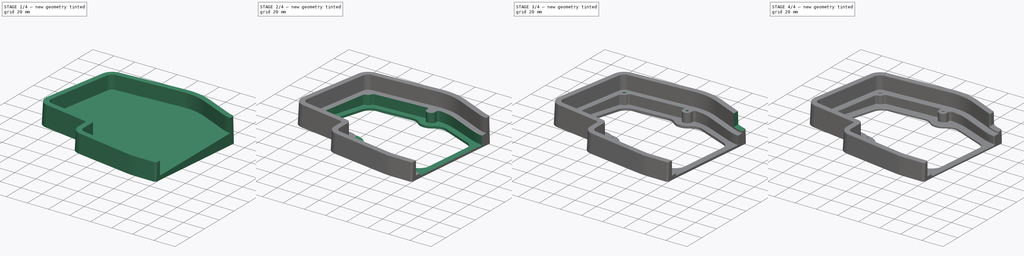
[diagram: build sequence overview — one tinted view per stage of 4, left to right]
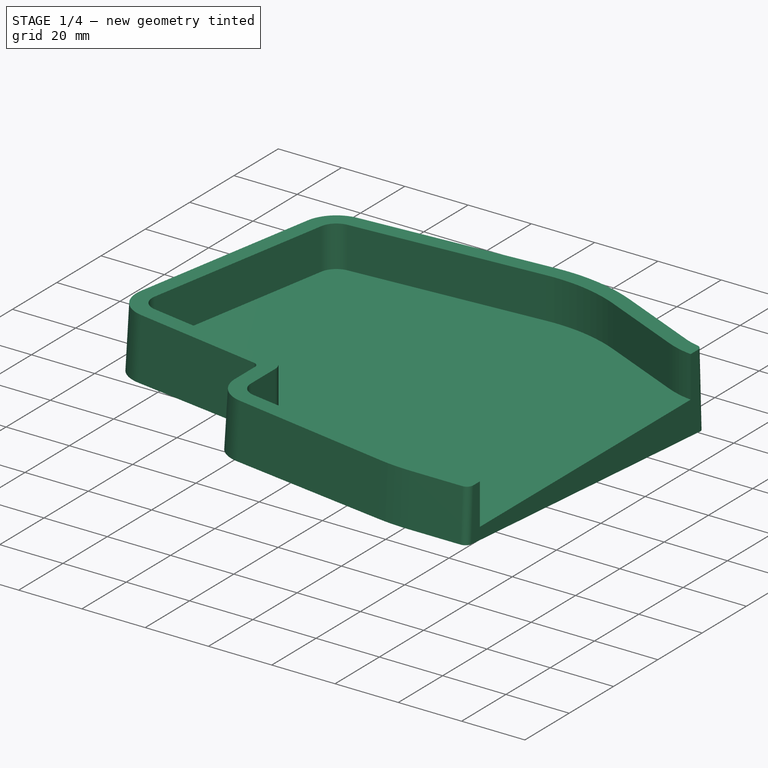
[diagram: stage 1 of 4 — iso view after this stage's code; geometry added in this stage tinted green]
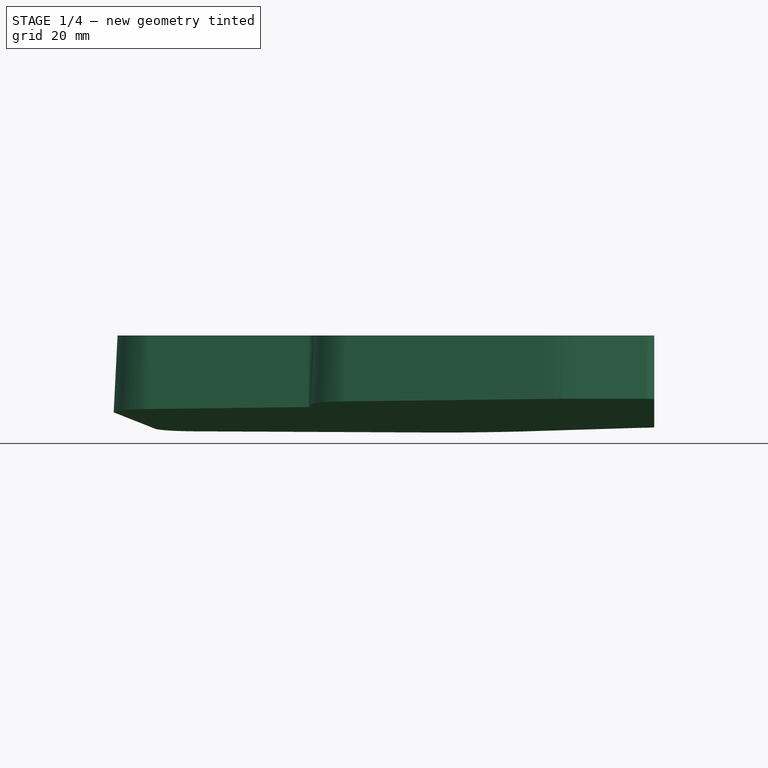
[diagram: stage 1 of 4 — front view after this stage's code; geometry added in this stage tinted green]
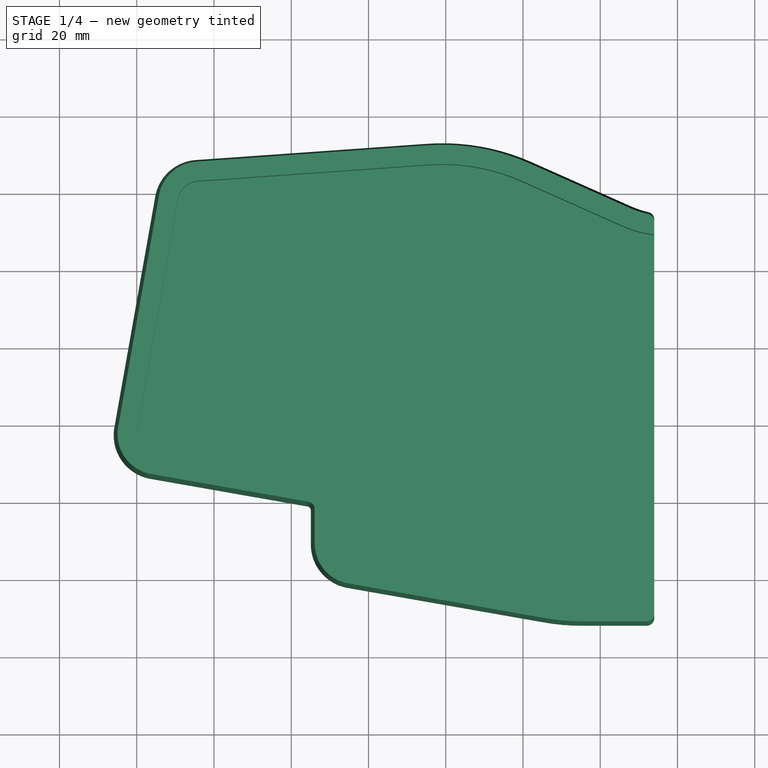
[diagram: stage 1 of 4 — top view after this stage's code; geometry added in this stage tinted green]
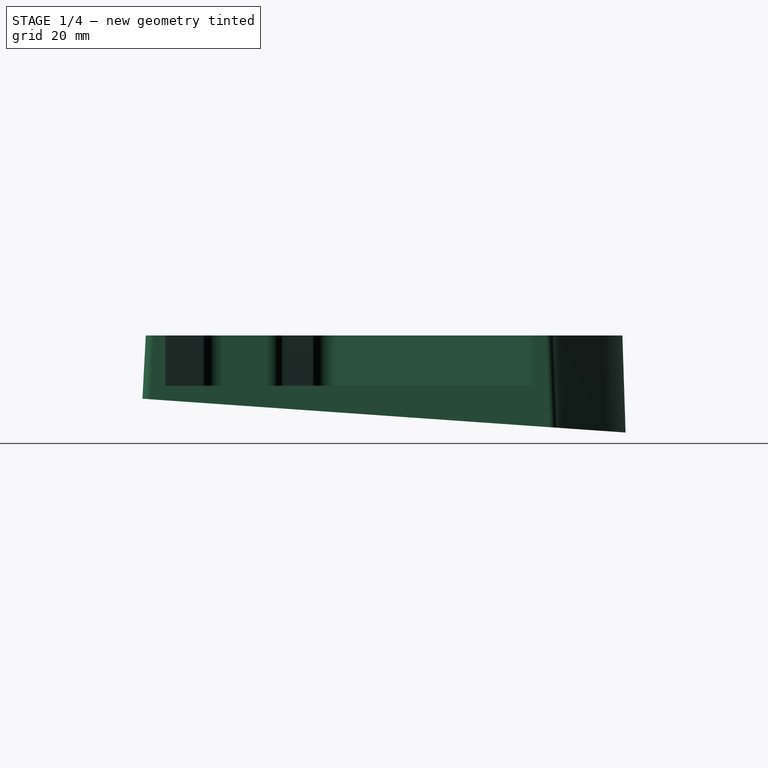
[diagram: stage 1 of 4 — right view after this stage's code; geometry added in this stage tinted green]
FCSTD DOCUMENT  (FreeCAD 0.21R)
Label: 001k-case
License: All rights reserved
LicenseURL: http://en.wikipedia.org/wiki/All_rights_reserved
objects: Sketcher::SketchObject×7, PartDesign::Pocket×4, PartDesign::Fillet×2, PartDesign::AdditiveLoft×1, PartDesign::Hole×1, PartDesign::Chamfer×1, PartDesign::Body×1
note: 26 computed .brp shape members not serialized (recipe doc carries the construction recipe); baked Part::Feature solids carry a one-line shape summary decoded from their .brp

FEATURE [Sketcher::SketchObject] Sketch
  AttachmentOffset = pos=(0,0,0) rot=(1,0,0;-0.069813rad)
  FullyConstrained = false
  MapMode = 5
  Placement = pos=(0,0,0) rot=(1,0,0;6.21337rad)
  Support = -> [XY_Plane]
  sketch-geometry (17):
    g0: ArcOfCircle CenterX=-134.479 CenterY=-2.5414 CenterZ=0 NormalX=0 NormalY=0 NormalZ=1 AngleXU=0 Radius=11.5001 StartAngle=2.96707 EndAngle=4.53784
    g1: LineSegment StartX=-136.476 StartY=-13.8667 StartZ=0 EndX=-95.7639 EndY=-21.0454 EndZ=0
    g2: LineSegment StartX=-94.9375 StartY=-22.0302 StartZ=0 EndX=-94.9375 EndY=-30.8853 EndZ=0
    g3: ArcOfCircle CenterX=-95.9375 CenterY=-22.0302 CenterZ=0 NormalX=0 NormalY=0 NormalZ=1 AngleXU=0 Radius=1 StartAngle=0 EndAngle=1.39626
    g4: LineSegment StartX=-85.4344 StartY=-42.2107 StartZ=0 EndX=-34.5569 EndY=-51.1817 EndZ=0
    g5: ArcOfCircle CenterX=-24.7457 CenterY=4.4609 CenterZ=0 NormalX=0 NormalY=0 NormalZ=1 AngleXU=0 Radius=56.501 StartAngle=4.53786 EndAngle=4.71239
    g6: LineSegment StartX=-135.211 StartY=59.5326 StartZ=0 EndX=-145.805 EndY=-0.54453 EndZ=0
    g7: ArcOfCircle CenterX=-123.886 CenterY=57.5357 CenterZ=0 NormalX=0 NormalY=0 NormalZ=1 AngleXU=0 Radius=11.5 StartAngle=1.64124 EndAngle=2.96706
    g8: LineSegment StartX=-124.696 StartY=69.0072 StartZ=0 EndX=-64.8163 EndY=73.2324 EndZ=0
    g9: ArcOfCircle CenterX=-60.8394 CenterY=16.8725 CenterZ=0 NormalX=0 NormalY=0 NormalZ=1 AngleXU=0 Radius=56.5 StartAngle=1.15129 EndAngle=1.64124
    g10: LineSegment StartX=-37.8262 StartY=68.4733 StartZ=0 EndX=-11.9275 EndY=56.9228 EndZ=0
    g11: ArcOfCircle CenterX=-2.3557 CenterY=78.3851 CenterZ=0 NormalX=0 NormalY=0 NormalZ=1 AngleXU=0 Radius=23.5 StartAngle=4.29288 EndAngle=4.4892
    g12: ArcOfCircle CenterX=-8 CenterY=53.5176 CenterZ=0 NormalX=0 NormalY=0 NormalZ=1 AngleXU=0 Radius=2.00001 StartAngle=0 EndAngle=1.3476
    g13: LineSegment StartX=-24.7458 StartY=-52.0401 StartZ=0 EndX=-8 EndY=-52.0401 EndZ=0
    g14: LineSegment StartX=-6 StartY=-50.0401 StartZ=0 EndX=-5.99999 EndY=53.5176 EndZ=0
    g15: ArcOfCircle CenterX=-8 CenterY=-50.0401 CenterZ=0 NormalX=0 NormalY=0 NormalZ=1 AngleXU=0 Radius=2 StartAngle=4.71239 EndAngle=6.28319
    g16: ArcOfCircle CenterX=-83.4376 CenterY=-30.8854 CenterZ=0 NormalX=0 NormalY=0 NormalZ=1 AngleXU=0 Radius=11.4999 StartAngle=3.14158 EndAngle=4.53787
  constraints (17):
    c: Coincident(g0,g6)
    c: Coincident(g0,g1)
    c: Coincident(g6,g7)
    c: Coincident(g7,g8)
    c: Coincident(g1,g3)
    c: Coincident(g2,g16)
    c: Coincident(g2,g3)
    c: Coincident(g4,g16)
    c: Coincident(g8,g9)
    c: Coincident(g9,g10)
    c: Coincident(g4,g5)
    c: Coincident(g5,g13)
    c: Coincident(g10,g11)
    c: Coincident(g13,g15)
    c: Coincident(g11,g12)
    c: Coincident(g14,g15)
    c: Coincident(g12,g14)
FEATURE [Sketcher::SketchObject] Sketch001
  AttachmentOffset = pos=(0,0,20) rot=(0,0,1;0rad)
  FullyConstrained = false
  MapMode = 5
  Placement = pos=(0,0,20) rot=(0,0,1;0rad)
  Support = -> [XY_Plane]
  sketch-geometry (17):
    g0: ArcOfCircle CenterX=-123.886 CenterY=57.5357 CenterZ=0 NormalX=0 NormalY=0 NormalZ=1 AngleXU=0 Radius=10.5 StartAngle=1.64124 EndAngle=2.96707
    g1: LineSegment StartX=-124.625 StartY=68.0096 StartZ=0 EndX=-64.7459 EndY=72.2349 EndZ=0
    g2: ArcOfCircle CenterX=-60.8394 CenterY=16.8725 CenterZ=0 NormalX=0 NormalY=0 NormalZ=1 AngleXU=0 Radius=55.5 StartAngle=1.15129 EndAngle=1.64124
    g3: LineSegment StartX=-38.2335 StartY=67.56 StartZ=0 EndX=-12.3349 EndY=56.0096 EndZ=0
    g4: LineSegment StartX=-134.227 StartY=59.3589 StartZ=0 EndX=-144.82 EndY=-0.71817 EndZ=0
    g5: ArcOfCircle CenterX=-134.479 CenterY=-2.5414 CenterZ=0 NormalX=0 NormalY=0 NormalZ=1 AngleXU=0 Radius=10.5001 StartAngle=2.96707 EndAngle=4.53784
    g6: LineSegment StartX=-85.2608 StartY=-41.2258 StartZ=0 EndX=-34.3832 EndY=-50.1969 EndZ=0
    g7: ArcOfCircle CenterX=-24.7457 CenterY=4.4609 CenterZ=0 NormalX=0 NormalY=0 NormalZ=1 AngleXU=0 Radius=55.501 StartAngle=4.53786 EndAngle=4.71239
    g8: LineSegment StartX=-136.303 StartY=-12.8819 StartZ=0 EndX=-95.5902 EndY=-20.0606 EndZ=0
    g9: LineSegment StartX=-93.9375 StartY=-22.0302 StartZ=0 EndX=-93.9375 EndY=-30.8854 EndZ=0
    g10: ArcOfCircle CenterX=-95.9375 CenterY=-22.0302 CenterZ=0 NormalX=0 NormalY=0 NormalZ=1 AngleXU=0 Radius=2 StartAngle=0 EndAngle=1.39626
    g11: ArcOfCircle CenterX=-2.3557 CenterY=78.3851 CenterZ=0 NormalX=0 NormalY=0 NormalZ=1 AngleXU=0 Radius=24.5 StartAngle=4.29288 EndAngle=4.49775
    g12: ArcOfCircle CenterX=-8 CenterY=52.4932 CenterZ=0 NormalX=0 NormalY=0 NormalZ=1 AngleXU=0 Radius=2.00002 StartAngle=0 EndAngle=1.35616
    g13: LineSegment StartX=-24.7458 StartY=-51.0401 StartZ=0 EndX=-8 EndY=-51.0401 EndZ=0
    g14: LineSegment StartX=-6 StartY=-49.0401 StartZ=0 EndX=-5.99998 EndY=52.4932 EndZ=0
    g15: ArcOfCircle CenterX=-8 CenterY=-49.0401 CenterZ=0 NormalX=0 NormalY=0 NormalZ=1 AngleXU=0 Radius=2 StartAngle=4.71239 EndAngle=6.28319
    g16: ArcOfCircle CenterX=-83.4376 CenterY=-30.8854 CenterZ=0 NormalX=0 NormalY=0 NormalZ=1 AngleXU=0 Radius=10.4999 StartAngle=3.14159 EndAngle=4.53786
  constraints (17):
    c: Coincident(g4,g5)
    c: Coincident(g5,g8)
    c: Coincident(g0,g4)
    c: Coincident(g0,g1)
    c: Coincident(g8,g10)
    c: Coincident(g9,g16)
    c: Coincident(g9,g10)
    c: Coincident(g6,g16)
    c: Coincident(g1,g2)
    c: Coincident(g2,g3)
    c: Coincident(g6,g7)
    c: Coincident(g7,g13)
    c: Coincident(g3,g11)
    c: Coincident(g13,g15)
    c: Coincident(g11,g12)
    c: Coincident(g14,g15)
    c: Coincident(g12,g14)
FEATURE [PartDesign::AdditiveLoft] AdditiveLoft
  Closed = false
  Profile = -> Sketch
  Ruled = true
  Sections = -> [Sketch001]
FEATURE [Sketcher::SketchObject] Sketch002
  FullyConstrained = false
  MapMode = 5
  Placement = pos=(0,0,20) rot=(0,0,1;0rad)
  Support = -> [AdditiveLoft]
  sketch-geometry (15):
    g0: ArcOfCircle CenterX=-60.8394 CenterY=16.8725 CenterZ=0 NormalX=0 NormalY=0 NormalZ=1 AngleXU=0 Radius=50.5 StartAngle=1.15129 EndAngle=1.64124
    g1: LineSegment StartX=-40.27 StartY=62.9936 StartZ=0 EndX=-14.3714 EndY=51.4431 EndZ=0
    g2: LineSegment StartX=-124.273 StartY=63.022 StartZ=0 EndX=-64.394 EndY=67.2473 EndZ=0
    g3: ArcOfCircle CenterX=-123.886 CenterY=57.5357 CenterZ=0 NormalX=0 NormalY=0 NormalZ=1 AngleXU=0 Radius=5.49996 StartAngle=1.64124 EndAngle=2.96707
    g4: LineSegment StartX=-129.303 StartY=58.4907 StartZ=0 EndX=-139.896 EndY=-1.58636 EndZ=0
    g5: ArcOfCircle CenterX=-134.479 CenterY=-2.5414 CenterZ=0 NormalX=0 NormalY=0 NormalZ=1 AngleXU=0 Radius=5.50007 StartAngle=2.96707 EndAngle=4.53784
    g6: LineSegment StartX=-135.434 StartY=-7.9579 StartZ=0 EndX=-92.6561 EndY=-15.5009 EndZ=0
    g7: ArcOfCircle CenterX=-93.4375 CenterY=-19.9325 CenterZ=0 NormalX=0 NormalY=0 NormalZ=1 AngleXU=0 Radius=4.5 StartAngle=2.80003e-06 EndAngle=1.39626
    g8: LineSegment StartX=-88.9375 StartY=-19.9325 StartZ=0 EndX=-88.9375 EndY=-30.8854 EndZ=0
    g9: LineSegment StartX=-84.3926 StartY=-36.3018 StartZ=0 EndX=-33.515 EndY=-45.2729 EndZ=0
    g10: ArcOfCircle CenterX=-24.7457 CenterY=4.4609 CenterZ=0 NormalX=0 NormalY=0 NormalZ=1 AngleXU=0 Radius=50.501 StartAngle=4.53786 EndAngle=4.71239
    g11: LineSegment StartX=-24.7458 StartY=-46.0401 StartZ=0 EndX=-3 EndY=-46.0401 EndZ=0
    g12: ArcOfCircle CenterX=-2.3557 CenterY=78.3851 CenterZ=0 NormalX=0 NormalY=0 NormalZ=1 AngleXU=0 Radius=29.5 StartAngle=4.29288 EndAngle=4.69055
    g13: LineSegment StartX=-3 StartY=-46.0401 StartZ=0 EndX=-3 EndY=48.8921 EndZ=0
    g14: ArcOfCircle CenterX=-83.4376 CenterY=-30.8854 CenterZ=0 NormalX=0 NormalY=0 NormalZ=1 AngleXU=0 Radius=5.49992 StartAngle=3.14158 EndAngle=4.53787
  constraints (15):
    c: Coincident(g4,g5)
    c: Coincident(g5,g6)
    c: Coincident(g3,g4)
    c: Coincident(g2,g3)
    c: Coincident(g6,g7)
    c: Coincident(g8,g14)
    c: Coincident(g7,g8)
    c: Coincident(g9,g14)
    c: Coincident(g0,g2)
    c: Coincident(g0,g1)
    c: Coincident(g9,g10)
    c: Coincident(g10,g11)
    c: Coincident(g1,g12)
    c: Coincident(g11,g13)
    c: Coincident(g12,g13)
FEATURE [PartDesign::Pocket] Pocket
  BaseFeature = -> AdditiveLoft
  Direction = (0,0,-1)
  Length = 13
  Length2 = 5
  Profile = -> Sketch002
  ReferenceAxis = -> Sketch002 [N_Axis]
  Type = 0
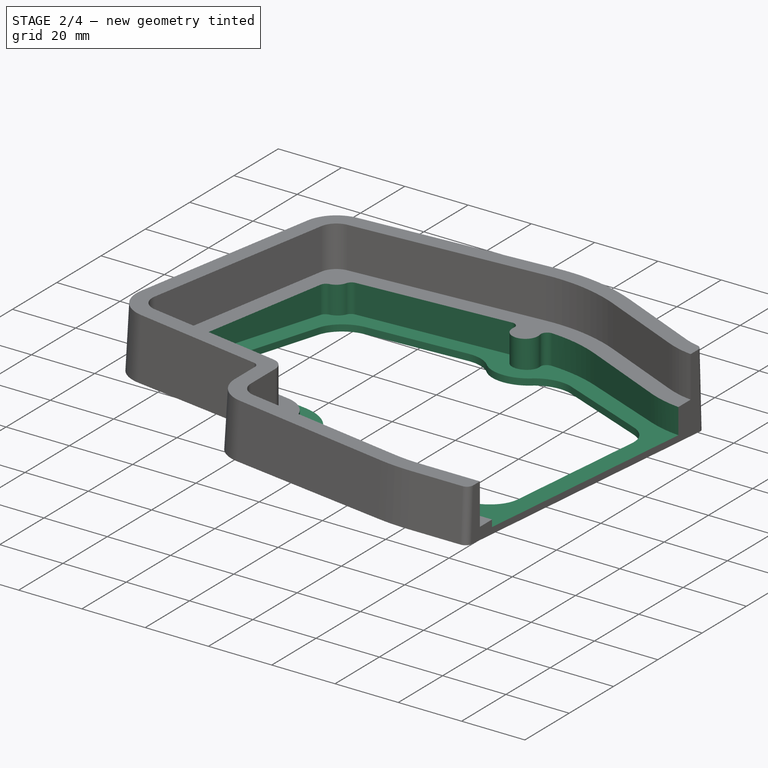
[diagram: stage 2 of 4 — iso view after this stage's code; geometry added in this stage tinted green]
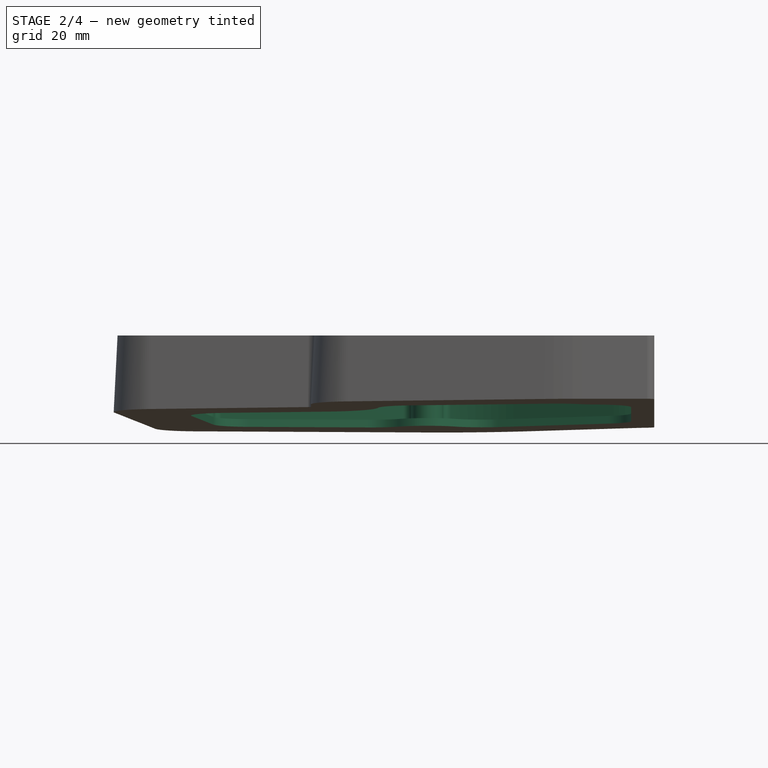
[diagram: stage 2 of 4 — front view after this stage's code; geometry added in this stage tinted green]
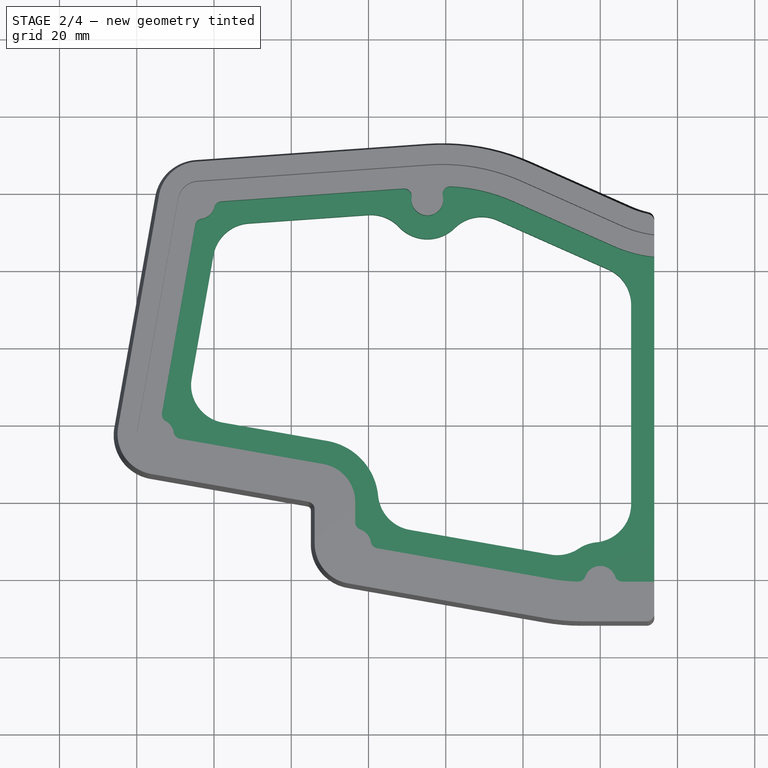
[diagram: stage 2 of 4 — top view after this stage's code; geometry added in this stage tinted green]
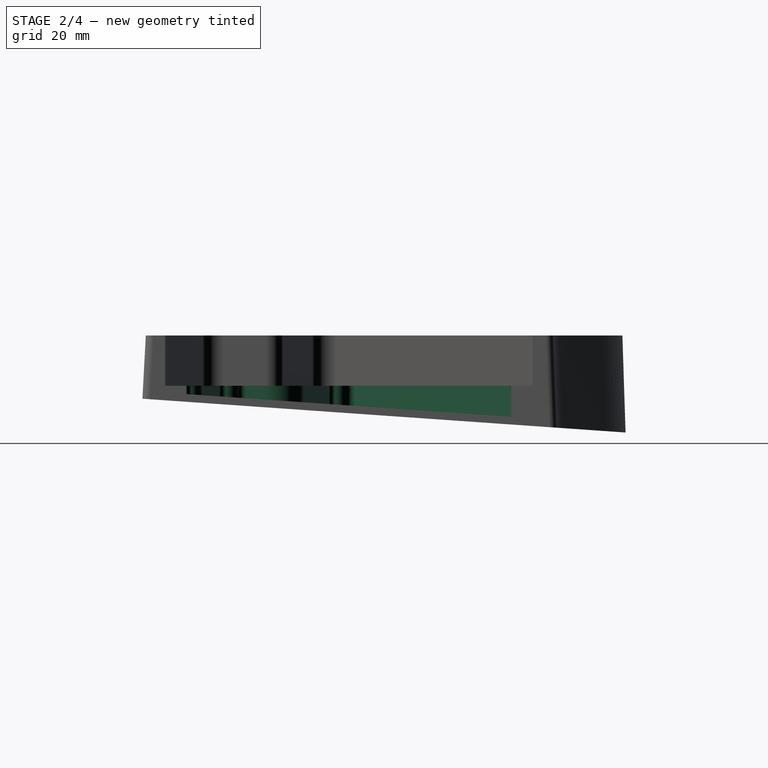
[diagram: stage 2 of 4 — right view after this stage's code; geometry added in this stage tinted green]
FEATURE [Sketcher::SketchObject] Sketch003
  FullyConstrained = false
  MapMode = 5
  Placement = pos=(0,0,7) rot=(0,0,1;0rad)
  Support = -> [Pocket]
  sketch-geometry (27):
    g0: ArcOfCircle CenterX=-93.4375 CenterY=-19.9325 CenterZ=0 NormalX=0 NormalY=0 NormalZ=1 AngleXU=0 Radius=10 StartAngle=2.80003e-06 EndAngle=1.39626
    g1: LineSegment StartX=-42.5103 StartY=57.9705 StartZ=0 EndX=-16.6117 EndY=46.42 EndZ=0
    g2: ArcOfCircle CenterX=-14.2494 CenterY=-38.5401 CenterZ=0 NormalX=0 NormalY=0 NormalZ=1 AngleXU=0 Radius=2 StartAngle=3.4817 EndAngle=4.71239
    g3: ArcOfCircle CenterX=-20 CenterY=-40.575 CenterZ=0 NormalX=0 NormalY=0 NormalZ=1 AngleXU=0 Radius=4.1 StartAngle=0.340108 EndAngle=2.79946
    g4: ArcOfCircle CenterX=-24.7458 CenterY=4.4599 CenterZ=0 NormalX=0 NormalY=0 NormalZ=1 AngleXU=0 Radius=45 StartAngle=4.53786 EndAngle=4.68912
    g5: ArcOfCircle CenterX=-25.7464 CenterY=-38.5285 CenterZ=0 NormalX=0 NormalY=0 NormalZ=1 AngleXU=0 Radius=2 StartAngle=4.68912 EndAngle=5.94105
    g6: LineSegment StartX=-77.7681 StartY=-31.885 StartZ=0 EndX=-32.5599 EndY=-39.8565 EndZ=0
    g7: ArcOfCircle CenterX=-77.4208 CenterY=-29.9154 CenterZ=0 NormalX=0 NormalY=0 NormalZ=1 AngleXU=0 Radius=2 StartAngle=3.30708 EndAngle=4.53786
    g8: ArcOfCircle CenterX=-83.4375 CenterY=-30.9203 CenterZ=0 NormalX=0 NormalY=0 NormalZ=1 AngleXU=0 Radius=4.1 StartAngle=0.165483 EndAngle=1.23675
    g9: LineSegment StartX=-83.4375 StartY=-19.9325 StartZ=0 EndX=-83.4375 EndY=-25.1574 EndZ=0
    g10: ArcOfCircle CenterX=-81.4375 CenterY=-25.1574 CenterZ=0 NormalX=0 NormalY=0 NormalZ=1 AngleXU=0 Radius=2 StartAngle=3.14159 EndAngle=4.37834
    g11: LineSegment StartX=-128.81 StartY=-3.54109 StartZ=0 EndX=-91.701 EndY=-10.0844 EndZ=0
    g12: ArcOfCircle CenterX=-128.463 CenterY=-1.57148 CenterZ=0 NormalX=0 NormalY=0 NormalZ=1 AngleXU=0 Radius=2 StartAngle=3.30708 EndAngle=4.53786
    g13: ArcOfCircle CenterX=-134.479 CenterY=-2.57632 CenterZ=0 NormalX=0 NormalY=0 NormalZ=1 AngleXU=0 Radius=4.1 StartAngle=0.165483 EndAngle=1.06327
    g14: ArcOfCircle CenterX=-131.515 CenterY=2.75476 CenterZ=0 NormalX=0 NormalY=0 NormalZ=1 AngleXU=0 Radius=2 StartAngle=2.96706 EndAngle=4.20486
    g15: LineSegment StartX=-124.893 StartY=51.8245 StartZ=0 EndX=-133.484 EndY=3.10206 EndZ=0
    g16: ArcOfCircle CenterX=-122.924 CenterY=51.4772 CenterZ=0 NormalX=0 NormalY=0 NormalZ=1 AngleXU=0 Radius=2 StartAngle=1.72926 EndAngle=2.96706
    g17: ArcOfCircle CenterX=-123.886 CenterY=57.5008 CenterZ=0 NormalX=0 NormalY=0 NormalZ=1 AngleXU=0 Radius=4.1 StartAngle=4.87085 EndAngle=6.02562
    g18: ArcOfCircle CenterX=-117.987 CenterY=55.9469 CenterZ=0 NormalX=0 NormalY=0 NormalZ=1 AngleXU=0 Radius=2 StartAngle=1.64124 EndAngle=2.88403
    g19: LineSegment StartX=-118.128 StartY=57.942 StartZ=0 EndX=-70.9504 EndY=61.2709 EndZ=0
    g20: ArcOfCircle CenterX=-70.8097 CenterY=59.2759 CenterZ=0 NormalX=0 NormalY=0 NormalZ=1 AngleXU=0 Radius=2 StartAngle=6.14241 EndAngle=7.92443
    g21: ArcOfCircle CenterX=-64.77 CenterY=58.42 CenterZ=0 NormalX=0 NormalY=0 NormalZ=1 AngleXU=0 Radius=4.1 StartAngle=3.00082 EndAngle=6.51572
    g22: ArcOfCircle CenterX=-60.8394 CenterY=16.8725 CenterZ=0 NormalX=0 NormalY=0 NormalZ=1 AngleXU=0 Radius=45 StartAngle=1.15129 EndAngle=1.52415
    g23: ArcOfCircle CenterX=-58.8342 CenterY=59.8257 CenterZ=0 NormalX=0 NormalY=0 NormalZ=1 AngleXU=0 Radius=2 StartAngle=1.52415 EndAngle=3.37413
    g24: LineSegment StartX=-14.2494 StartY=-40.5401 StartZ=0 EndX=-3 EndY=-40.5401 EndZ=0
    g25: ArcOfCircle CenterX=-2.3557 CenterY=78.3851 CenterZ=0 NormalX=0 NormalY=0 NormalZ=1 AngleXU=0 Radius=35 StartAngle=4.29288 EndAngle=4.69398
    g26: LineSegment StartX=-3 StartY=-40.5401 StartZ=0 EndX=-3 EndY=43.391 EndZ=0
  constraints (27):
    c: Coincident(g14,g15)
    c: Coincident(g13,g14)
    c: Coincident(g12,g13)
    c: Coincident(g11,g12)
    c: Coincident(g15,g16)
    c: Coincident(g16,g17)
    c: Coincident(g17,g18)
    c: Coincident(g18,g19)
    c: Coincident(g0,g11)
    c: Coincident(g9,g10)
    c: Coincident(g0,g9)
    c: Coincident(g8,g10)
    c: Coincident(g7,g8)
    c: Coincident(g6,g7)
    c: Coincident(g19,g20)
    c: Coincident(g20,g21)
    c: Coincident(g21,g23)
    c: Coincident(g22,g23)
    c: Coincident(g1,g22)
    c: Coincident(g4,g6)
    c: Coincident(g4,g5)
    c: Coincident(g3,g5)
    c: Coincident(g1,g25)
    c: Coincident(g2,g3)
    c: Coincident(g2,g24)
    c: Coincident(g24,g26)
    c: Coincident(g25,g26)
FEATURE [PartDesign::Pocket] Pocket001
  BaseFeature = -> Pocket
  Direction = (0,0,-1)
  Length = 0
  Length2 = 5
  Offset = -2
  Profile = -> Sketch003
  ReferenceAxis = -> Sketch003 [N_Axis]
  Type = 3
  UpToFace = -> Pocket [Face1]
FEATURE [Sketcher::SketchObject] Sketch004
  FullyConstrained = false
  MapMode = 5
  Placement = pos=(0,0.139173,1.99027) rot=(-1,0,0;0.069813rad)
  Support = -> [Pocket001]
  sketch-geometry (17):
    g0: ArcOfCircle CenterX=-110.299 CenterY=42.4547 CenterZ=0 NormalX=0 NormalY=0 NormalZ=1 AngleXU=0 Radius=10 StartAngle=1.64124 EndAngle=2.96706
    g1: LineSegment StartX=-120.147 StartY=44.1911 StartZ=0 EndX=-125.792 EndY=12.1736 EndZ=0
    g2: LineSegment StartX=-117.681 StartY=0.589046 StartZ=0 EndX=-90.6591 EndY=-4.17556 EndZ=0
    g3: ArcOfCircle CenterX=-115.944 CenterY=10.4371 CenterZ=0 NormalX=0 NormalY=0 NormalZ=1 AngleXU=0 Radius=10 StartAngle=2.96706 EndAngle=4.53786
    g4: ArcOfCircle CenterX=-93.4375 CenterY=-19.9325 CenterZ=0 NormalX=0 NormalY=0 NormalZ=1 AngleXU=0 Radius=16 StartAngle=0.0960655 EndAngle=1.39626
    g5: ArcOfCircle CenterX=-67.5574 CenterY=-17.4386 CenterZ=0 NormalX=0 NormalY=0 NormalZ=1 AngleXU=0 Radius=10 StartAngle=3.23766 EndAngle=4.53786
    g6: LineSegment StartX=-69.2938 StartY=-27.2867 StartZ=0 EndX=-32.8949 EndY=-33.7048 EndZ=0
    g7: ArcOfCircle CenterX=-31.1584 CenterY=-23.8568 CenterZ=0 NormalX=0 NormalY=0 NormalZ=1 AngleXU=0 Radius=10 StartAngle=4.53786 EndAngle=5.30093
    g8: ArcOfCircle CenterX=-20 CenterY=-40.575 CenterZ=0 NormalX=0 NormalY=0 NormalZ=1 AngleXU=0 Radius=10.1 StartAngle=1.67046 EndAngle=2.15933
    g9: ArcOfCircle CenterX=-22 CenterY=-20.5748 CenterZ=0 NormalX=0 NormalY=0 NormalZ=1 AngleXU=0 Radius=10 StartAngle=4.81206 EndAngle=6.28319
    g10: LineSegment StartX=-12 StartY=-20.5748 StartZ=0 EndX=-12 EndY=31.304 EndZ=0
    g11: ArcOfCircle CenterX=-22 CenterY=31.304 CenterZ=0 NormalX=0 NormalY=0 NormalZ=1 AngleXU=0 Radius=10 StartAngle=0 EndAngle=1.15128
    g12: LineSegment StartX=-46.6002 StartY=53.2248 StartZ=0 EndX=-17.9269 EndY=40.4369 EndZ=0
    g13: ArcOfCircle CenterX=-50.6733 CenterY=44.092 CenterZ=0 NormalX=0 NormalY=0 NormalZ=1 AngleXU=0 Radius=10 StartAngle=1.15128 EndAngle=2.34806
    g14: ArcOfCircle CenterX=-64.77 CenterY=58.42 CenterZ=0 NormalX=0 NormalY=0 NormalZ=1 AngleXU=0 Radius=10.1 StartAngle=3.89732 EndAngle=5.48965
    g15: LineSegment StartX=-111.002 StartY=52.4299 StartZ=0 EndX=-80.1021 EndY=54.6103 EndZ=0
    g16: ArcOfCircle CenterX=-79.3982 CenterY=44.6351 CenterZ=0 NormalX=0 NormalY=0 NormalZ=1 AngleXU=0 Radius=10 StartAngle=0.755727 EndAngle=1.64124
  constraints (17):
    c: Coincident(g1,g3)
    c: Coincident(g0,g1)
    c: Coincident(g2,g3)
    c: Coincident(g0,g15)
    c: Coincident(g2,g4)
    c: Coincident(g15,g16)
    c: Coincident(g4,g5)
    c: Coincident(g14,g16)
    c: Coincident(g5,g6)
    c: Coincident(g13,g14)
    c: Coincident(g12,g13)
    c: Coincident(g6,g7)
    c: Coincident(g7,g8)
    c: Coincident(g8,g9)
    c: Coincident(g11,g12)
    c: Coincident(g9,g10)
    c: Coincident(g10,g11)
FEATURE [PartDesign::Pocket] Pocket002
  BaseFeature = -> Pocket001
  Direction = (0,-0.0697565,-0.997564)
  Length = 5
  Length2 = 5
  Profile = -> Sketch004
  ReferenceAxis = -> Sketch004 [N_Axis]
  Type = 0
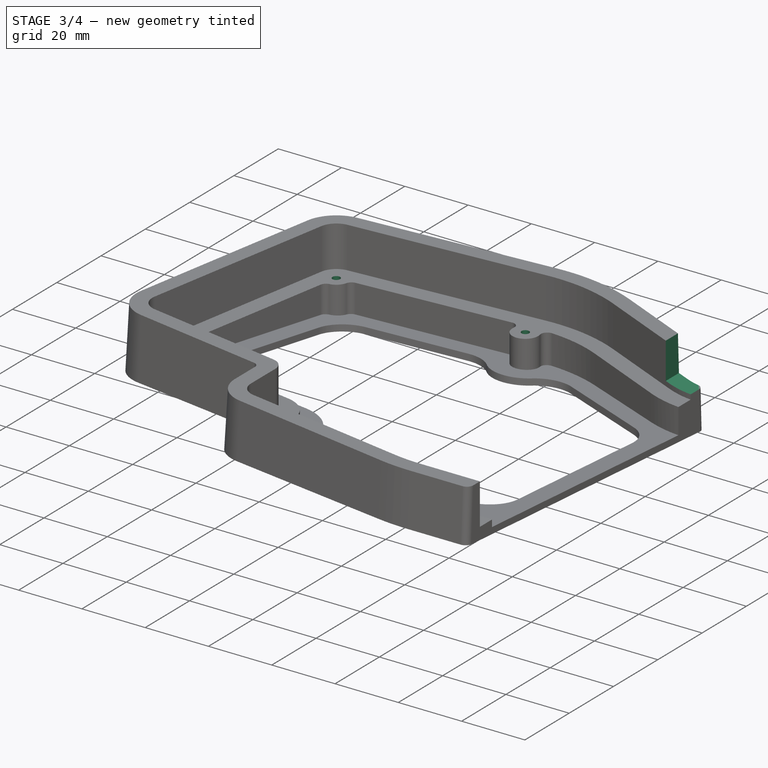
[diagram: stage 3 of 4 — iso view after this stage's code; geometry added in this stage tinted green]
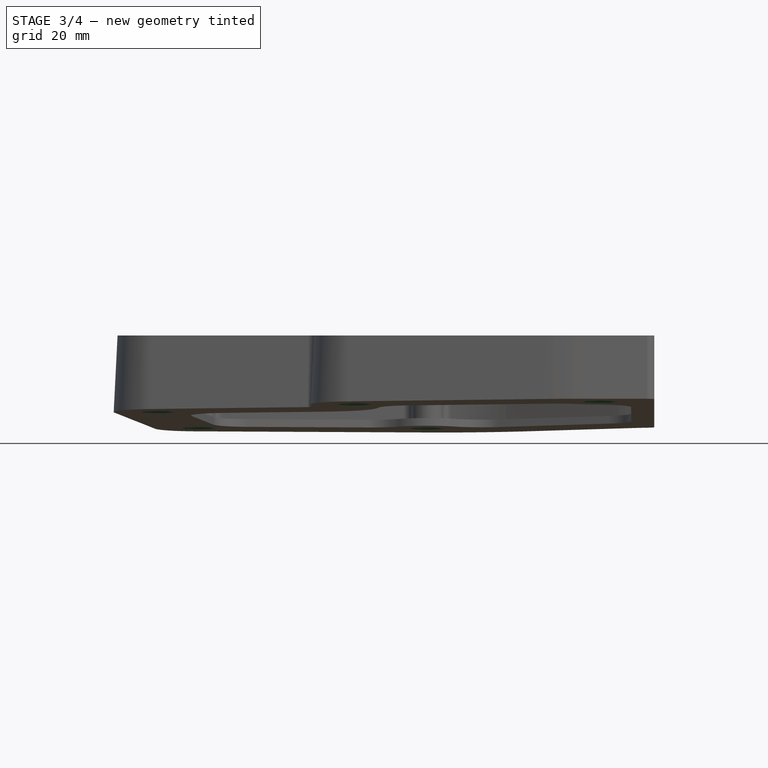
[diagram: stage 3 of 4 — front view after this stage's code; geometry added in this stage tinted green]
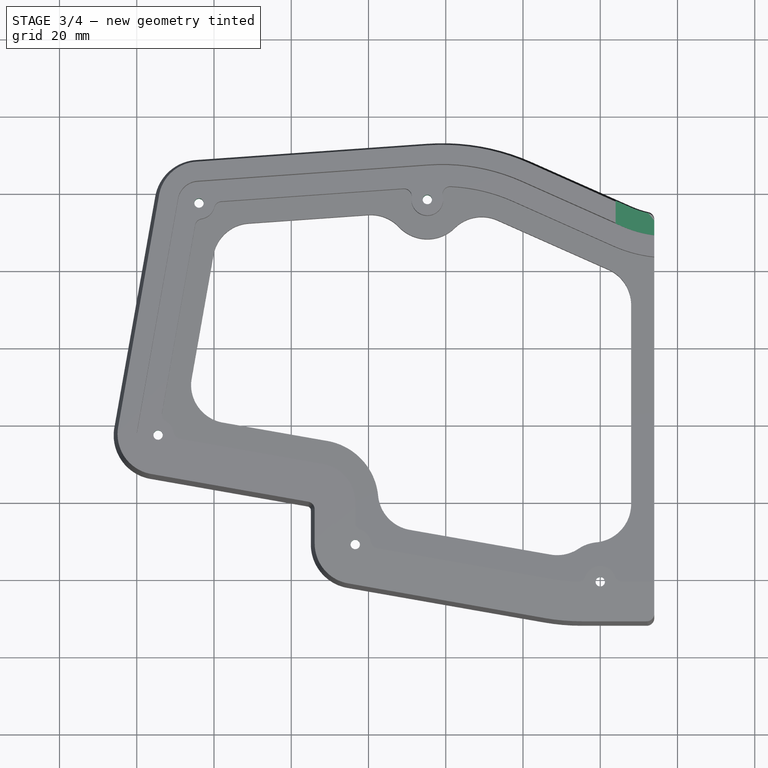
[diagram: stage 3 of 4 — top view after this stage's code; geometry added in this stage tinted green]
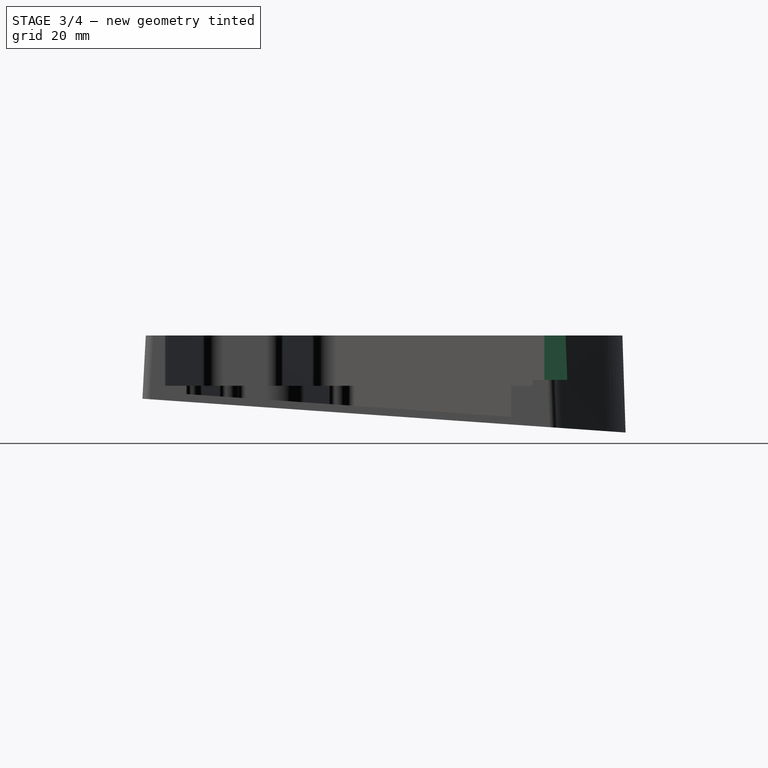
[diagram: stage 3 of 4 — right view after this stage's code; geometry added in this stage tinted green]
FEATURE [Sketcher::SketchObject] Sketch005
  FullyConstrained = false
  MapMode = 5
  Placement = pos=(0,0,7) rot=(0,0,1;0rad)
  Support = -> [Pocket]
  sketch-geometry (5):
    g0: Circle CenterX=-20 CenterY=-40.575 CenterZ=0 NormalX=0 NormalY=0 NormalZ=-1 AngleXU=0 Radius=1.1
    g1: Circle CenterX=-83.4375 CenterY=-30.9203 CenterZ=0 NormalX=0 NormalY=0 NormalZ=-1 AngleXU=0 Radius=1.1
    g2: Circle CenterX=-134.479 CenterY=-2.57632 CenterZ=0 NormalX=0 NormalY=0 NormalZ=-1 AngleXU=0 Radius=1.1
    g3: Circle CenterX=-123.886 CenterY=57.5008 CenterZ=0 NormalX=0 NormalY=0 NormalZ=-1 AngleXU=0 Radius=1.1
    g4: Circle CenterX=-64.77 CenterY=58.42 CenterZ=0 NormalX=0 NormalY=0 NormalZ=-1 AngleXU=0 Radius=1.1
FEATURE [PartDesign::Hole] Hole
  BaseFeature = -> Pocket002
  CustomThreadClearance = 0
  Depth = 25
  DepthType = 0
  Diameter = 2.42
  DrillForDepth = false
  DrillPoint = 1
  DrillPointAngle = 118
  HoleCutCountersinkAngle = 90
  HoleCutCustomValues = false
  HoleCutDepth = 0
  HoleCutDiameter = 6.1
  HoleCutType = 0
  ModelThread = false
  Profile = -> Sketch005
  Tapered = false
  TaperedAngle = 90
  ThreadClass = 0
  ThreadDepth = 25
  ThreadDepthType = 0
  ThreadDirection = 0
  ThreadFit = 0
  ThreadSize = 7
  ThreadType = 1
  Threaded = false
  UseCustomThreadClearance = false
FEATURE [PartDesign::Chamfer] Chamfer
  Angle = 45
  Base = -> Hole [Edge36,Edge39,Edge38,Edge37,Edge18]
  BaseFeature = -> Hole
  ChamferType = 0
  FlipDirection = false
  Size = 3
  Size2 = 1
  SupportTransform = false
  UseAllEdges = false
FEATURE [Sketcher::SketchObject] Sketch006
  ExternalGeometry = -> [AdditiveLoft]
  FullyConstrained = true
  MapMode = 5
  Placement = pos=(0,0,20) rot=(0,0,1;0rad)
  Support = -> [AdditiveLoft]
  sketch-geometry (4):
    g0: LineSegment StartX=-0.999981 StartY=72.4932 StartZ=0 EndX=-16 EndY=72.4932 EndZ=0
    g1: LineSegment StartX=-16 StartY=72.4932 StartZ=0 EndX=-16 EndY=32.4932 EndZ=0
    g2: LineSegment StartX=-16 StartY=32.4932 StartZ=0 EndX=-0.999981 EndY=32.4932 EndZ=0
    g3: LineSegment StartX=-0.999981 StartY=32.4932 StartZ=0 EndX=-0.999981 EndY=72.4932 EndZ=0
  constraints (12):
    c: Coincident(g0,g1)
    c: Coincident(g1,g2)
    c: Coincident(g2,g3)
    c: Coincident(g3,g0)
    c: Horizontal(g0)
    c: Horizontal(g2)
    c: Vertical(g1)
    c: Vertical(g3)
    c: Distance(g-3,g1) = 10
    c: Distance(g-3,g3) = 5
    c: Distance(g3) = 40
    c: Distance(g-3,g2) = 20
FEATURE [PartDesign::Pocket] Pocket003
  BaseFeature = -> Chamfer
  Direction = (0,0,-1)
  Length = 0
  Length2 = 5
  Offset = -1.5
  Profile = -> Sketch006
  ReferenceAxis = -> Sketch006 [N_Axis]
  Type = 3
  UpToFace = -> Chamfer [Face44]
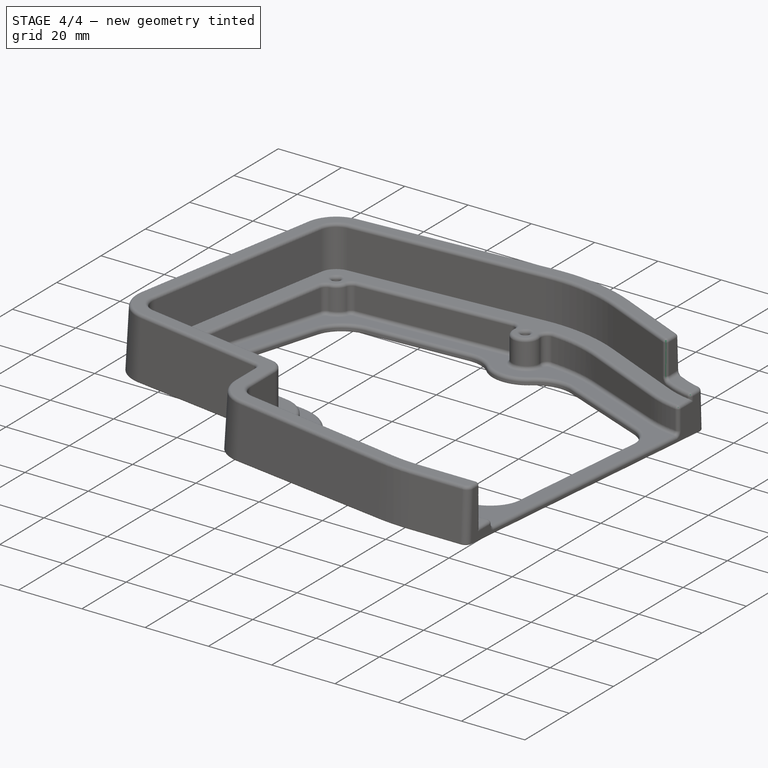
[diagram: stage 4 of 4 — iso view after this stage's code; geometry added in this stage tinted green]
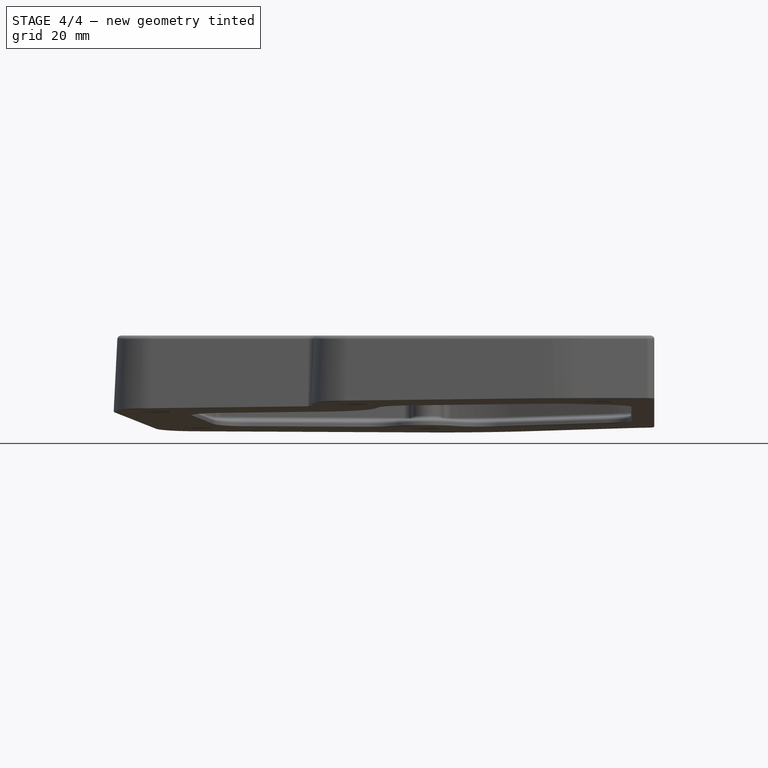
[diagram: stage 4 of 4 — front view after this stage's code; geometry added in this stage tinted green]
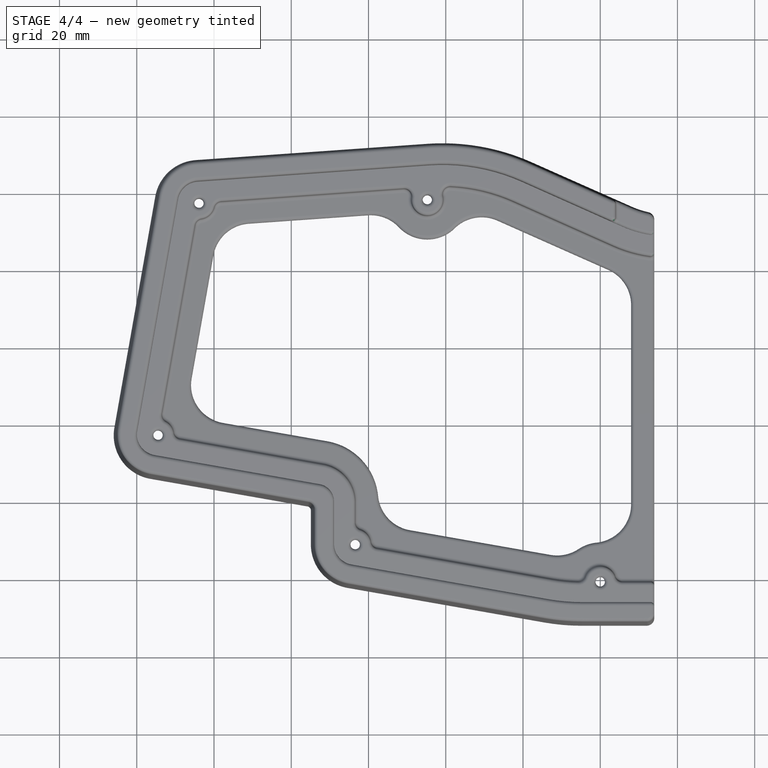
[diagram: stage 4 of 4 — top view after this stage's code; geometry added in this stage tinted green]
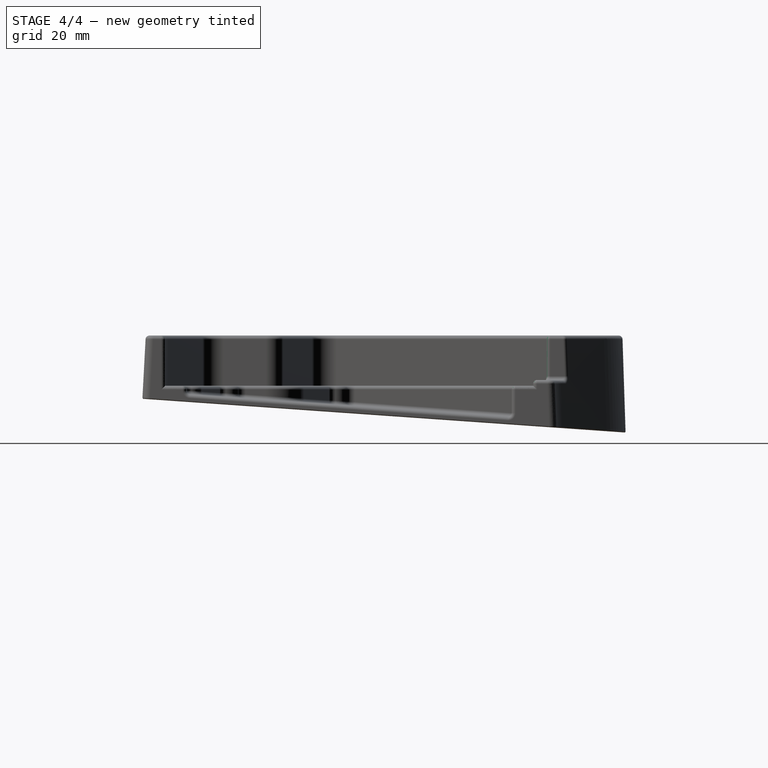
[diagram: stage 4 of 4 — right view after this stage's code; geometry added in this stage tinted green]
FEATURE [PartDesign::Fillet] Fillet
  Base = -> Pocket003 [Face42,Face44,Face43,Edge74,Edge73,Edge72,Edge157,Edge70,Edge69,Edge71,Edge191,Edge189,Edge190,Edge192,Edge129,Face48,Edge75]
  BaseFeature = -> Pocket003
  Radius = 1
  SupportTransform = false
  UseAllEdges = false
FEATURE [PartDesign::Fillet] Fillet001
  Base = -> Fillet [Face4]
  BaseFeature = -> Fillet
  Radius = 0.3
  SupportTransform = false
  UseAllEdges = false
FEATURE [PartDesign::Body] Body  label="Corps"
  Group = -> [Sketch,Sketch001,AdditiveLoft,Sketch002,Pocket,Sketch003,Pocket001,Sketch004,Pocket002,Sketch005,Hole,Chamfer,Sketch006,Pocket003,Fillet,Fillet001]
  Origin = -> Origin
  Placement = pos=(0,0,0) rot=(1,0,0;0.069813rad)
  Tip = -> Fillet001
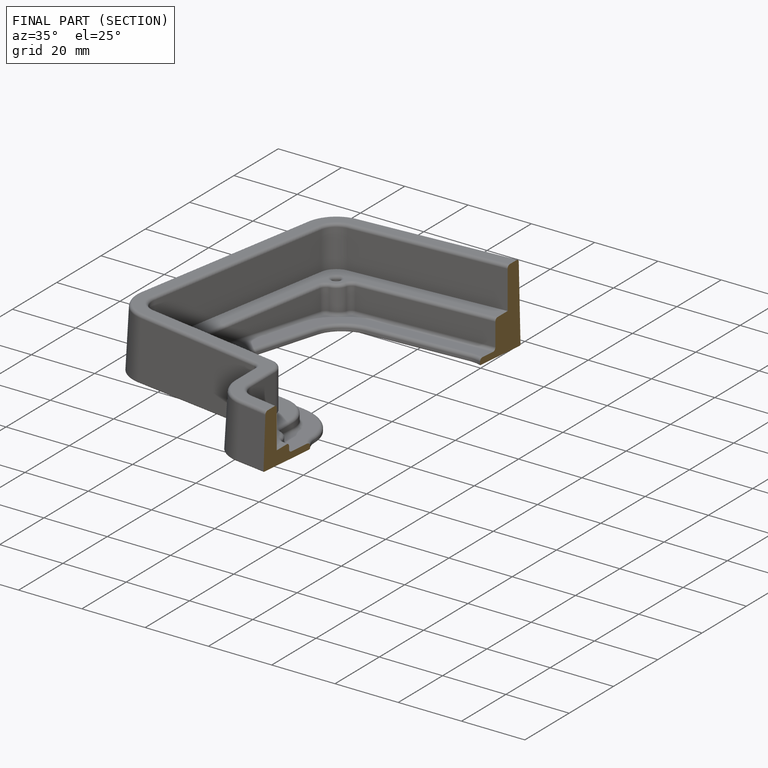
[diagram: finished part — half-section view (interior)]
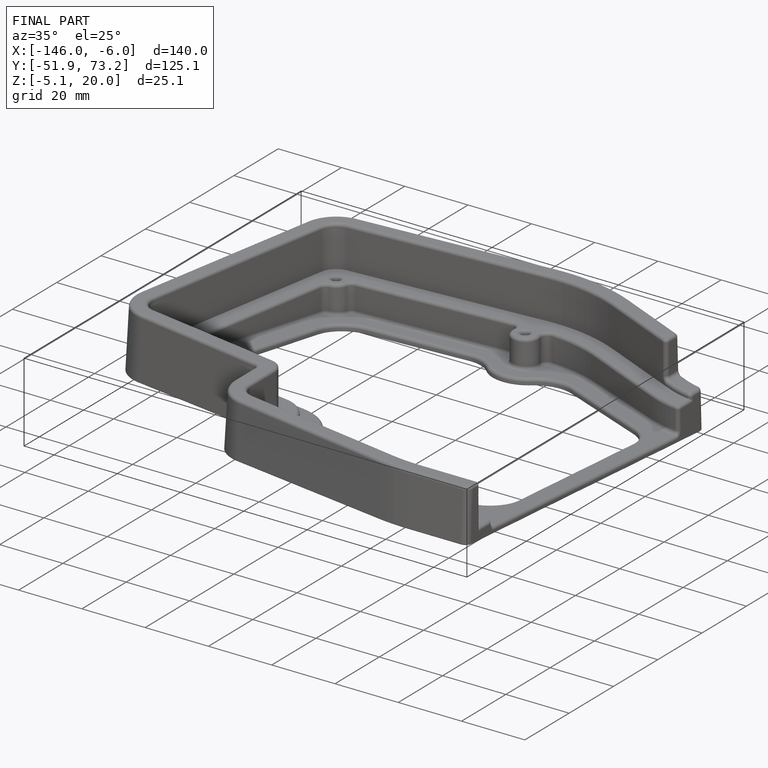
[diagram: finished part — iso view with bounding-box wireframe]
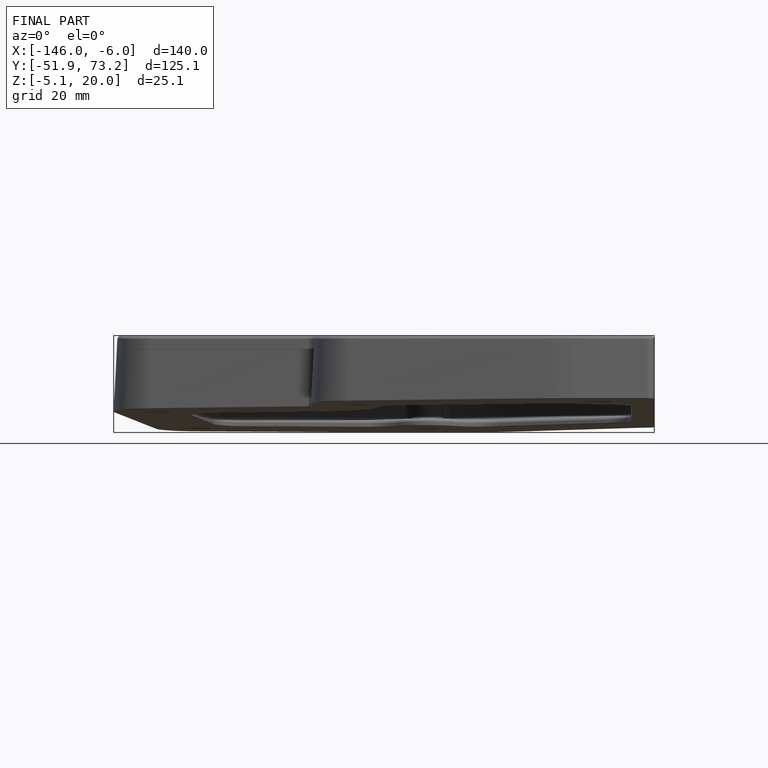
[diagram: finished part — front view with bounding-box wireframe]
